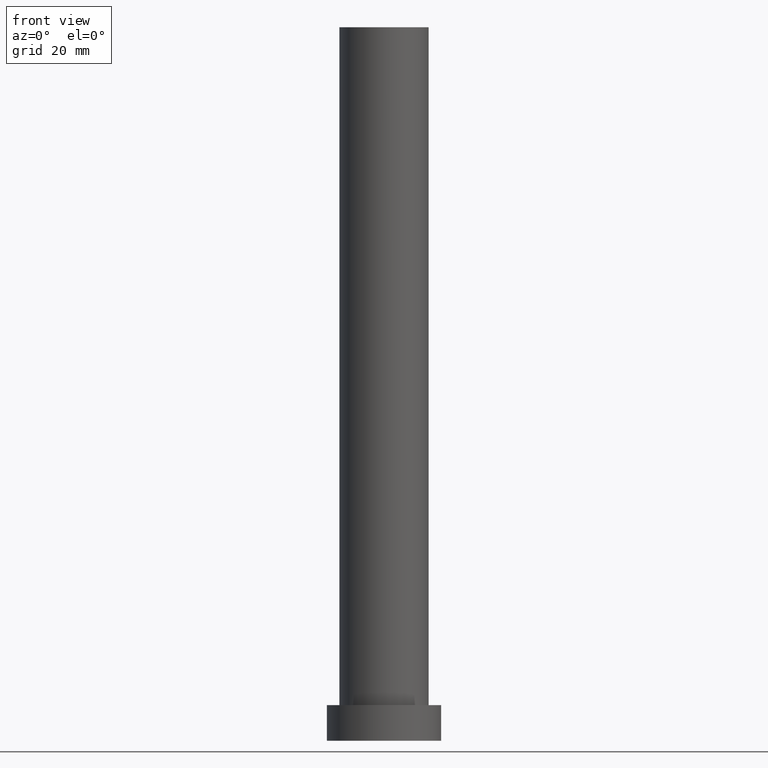
[diagram: clean part render]
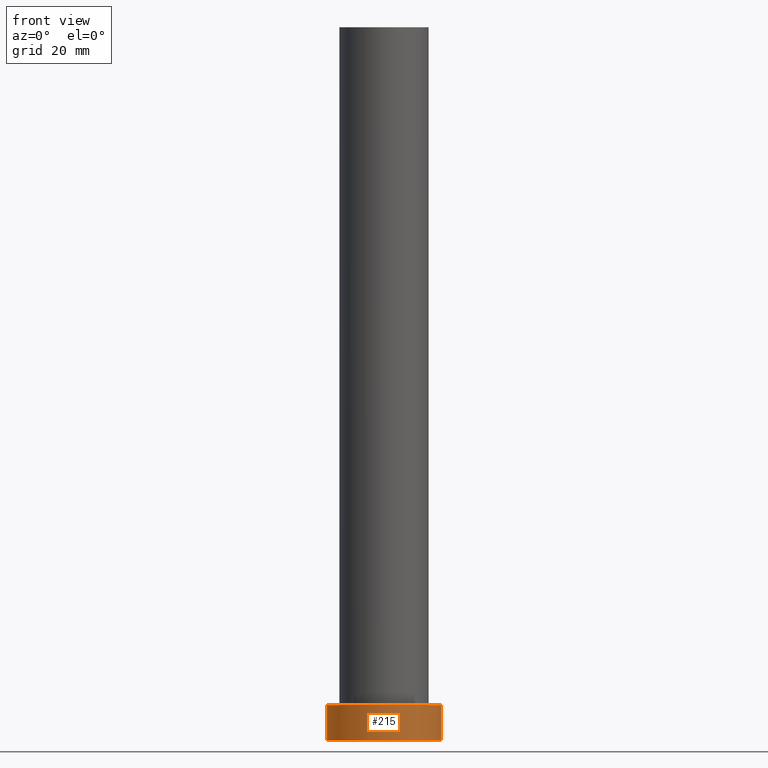
[diagram: same view with one face highlighted and labeled with its STEP entity id]
A machine part, front view. The second image highlights one B-rep face of the part: STEP entity #215.
In plain terms, the highlighted cylindrical surface (partial cylindrical patch) has radius 16 mm, axis along (-0, -0, -1).
Its self-contained STEP definition (entity closure, byte-faithful):
#1 = AXIS2_PLACEMENT_3D ( 'NONE', #153, #230, #193 ) ;
#6 = CYLINDRICAL_SURFACE ( 'NONE', #101, 16.00000000000000000 ) ;
#7 = LINE ( 'NONE', #62, #203 ) ;
#16 = CARTESIAN_POINT ( 'NONE',  ( -16.00000000000000000, 0.000000000000000000, 10.00000000000000000 ) ) ;
#24 = VECTOR ( 'NONE', #189, 1000.000000000000000 ) ;
#30 = CARTESIAN_POINT ( 'NONE',  ( -16.00000000000000000, 0.000000000000000000, 0.000000000000000000 ) ) ;
#47 = ORIENTED_EDGE ( 'NONE', *, *, #177, .T. ) ;
#49 = CARTESIAN_POINT ( 'NONE',  ( 0.000000000000000000, 0.000000000000000000, 10.00000000000000000 ) ) ;
#51 = DIRECTION ( 'NONE',  ( 1.000000000000000000, 0.000000000000000000, 0.000000000000000000 ) ) ;
#52 = LINE ( 'NONE', #16, #24 ) ;
#56 = ORIENTED_EDGE ( 'NONE', *, *, #140, .T. ) ;
#62 = CARTESIAN_POINT ( 'NONE',  ( 16.00000000000000000, 1.959434878635765131E-15, 10.00000000000000000 ) ) ;
#64 = DIRECTION ( 'NONE',  ( -0.000000000000000000, -0.000000000000000000, -1.000000000000000000 ) ) ;
#68 = DIRECTION ( 'NONE',  ( 0.000000000000000000, 0.000000000000000000, 1.000000000000000000 ) ) ;
#87 = DIRECTION ( 'NONE',  ( -1.000000000000000000, 0.000000000000000000, 0.000000000000000000 ) ) ;
#89 = CARTESIAN_POINT ( 'NONE',  ( 16.00000000000000000, 1.959434878635765131E-15, 0.000000000000000000 ) ) ;
#95 = VERTEX_POINT ( 'NONE', #130 ) ;
#101 = AXIS2_PLACEMENT_3D ( 'NONE', #49, #64, #87 ) ;
#119 = EDGE_CURVE ( 'NONE', #223, #95, #228, .T. ) ;
#128 = CARTESIAN_POINT ( 'NONE',  ( -16.00000000000000000, 0.000000000000000000, 10.00000000000000000 ) ) ;
#129 = EDGE_LOOP ( 'NONE', ( #184, #197, #56, #47 ) ) ;
#130 = CARTESIAN_POINT ( 'NONE',  ( 16.00000000000000000, 1.959434878635765131E-15, 10.00000000000000000 ) ) ;
#140 = EDGE_CURVE ( 'NONE', #223, #204, #52, .T. ) ;
#142 = CIRCLE ( 'NONE', #253, 16.00000000000000000 ) ;
#152 = FACE_OUTER_BOUND ( 'NONE', #129, .T. ) ;
#153 = CARTESIAN_POINT ( 'NONE',  ( 0.000000000000000000, 0.000000000000000000, 10.00000000000000000 ) ) ;
#161 = EDGE_CURVE ( 'NONE', #95, #236, #7, .T. ) ;
#171 = CARTESIAN_POINT ( 'NONE',  ( 0.000000000000000000, 0.000000000000000000, 0.000000000000000000 ) ) ;
#177 = EDGE_CURVE ( 'NONE', #204, #236, #142, .T. ) ;
#184 = ORIENTED_EDGE ( 'NONE', *, *, #161, .F. ) ;
#189 = DIRECTION ( 'NONE',  ( -0.000000000000000000, -0.000000000000000000, -1.000000000000000000 ) ) ;
#193 = DIRECTION ( 'NONE',  ( 1.000000000000000000, 0.000000000000000000, 0.000000000000000000 ) ) ;
#197 = ORIENTED_EDGE ( 'NONE', *, *, #119, .F. ) ;
#203 = VECTOR ( 'NONE', #243, 1000.000000000000000 ) ;
#204 = VERTEX_POINT ( 'NONE', #30 ) ;
#215 = ADVANCED_FACE ( 'NONE', ( #152 ), #6, .T. ) ;
#223 = VERTEX_POINT ( 'NONE', #128 ) ;
#228 = CIRCLE ( 'NONE', #1, 16.00000000000000000 ) ;
#230 = DIRECTION ( 'NONE',  ( 0.000000000000000000, 0.000000000000000000, 1.000000000000000000 ) ) ;
#236 = VERTEX_POINT ( 'NONE', #89 ) ;
#243 = DIRECTION ( 'NONE',  ( -0.000000000000000000, -0.000000000000000000, -1.000000000000000000 ) ) ;
#253 = AXIS2_PLACEMENT_3D ( 'NONE', #171, #68, #51 ) ;